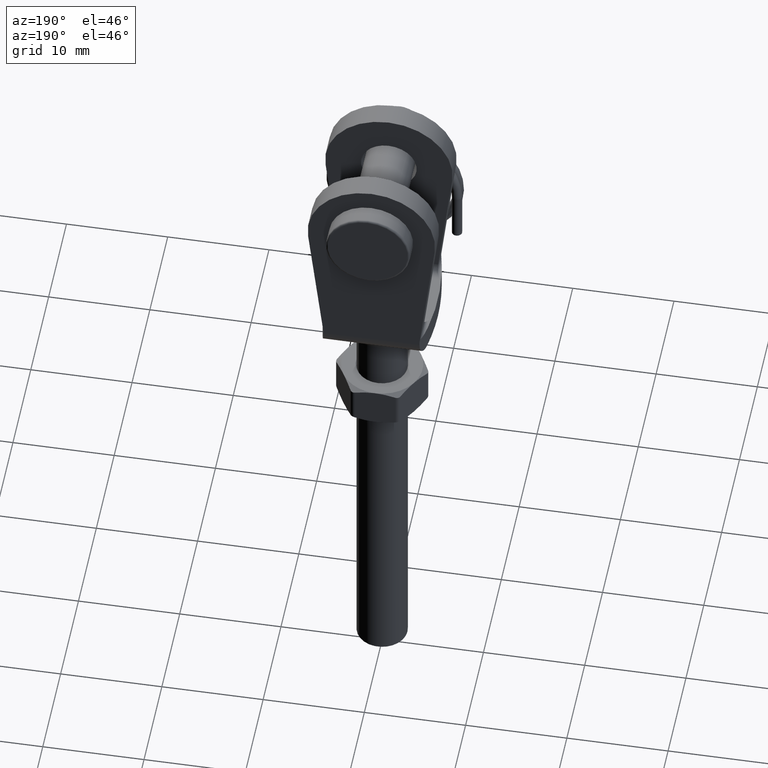
[diagram: clean part render]
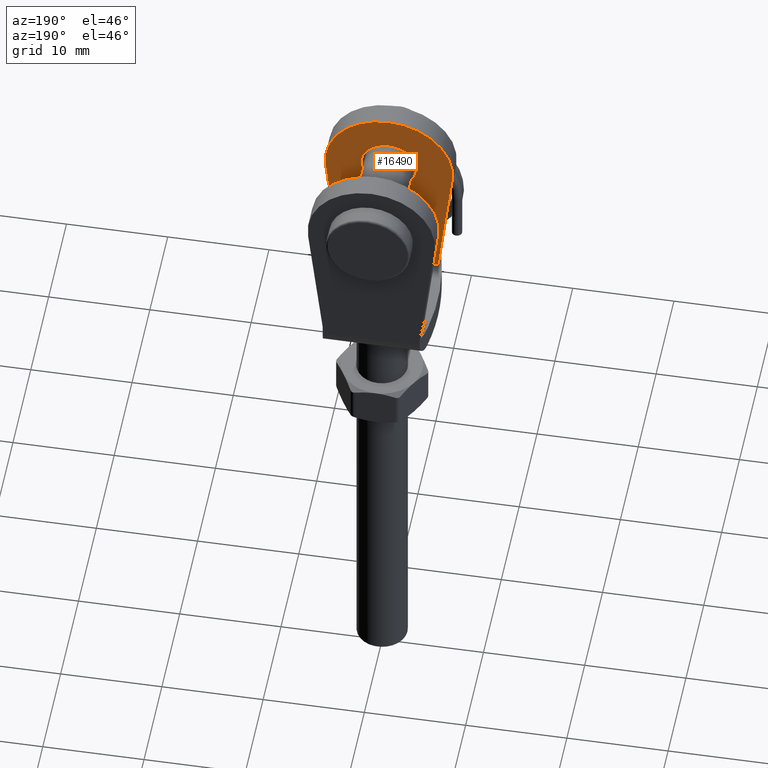
[diagram: same view with one face highlighted and labeled with its STEP entity id]
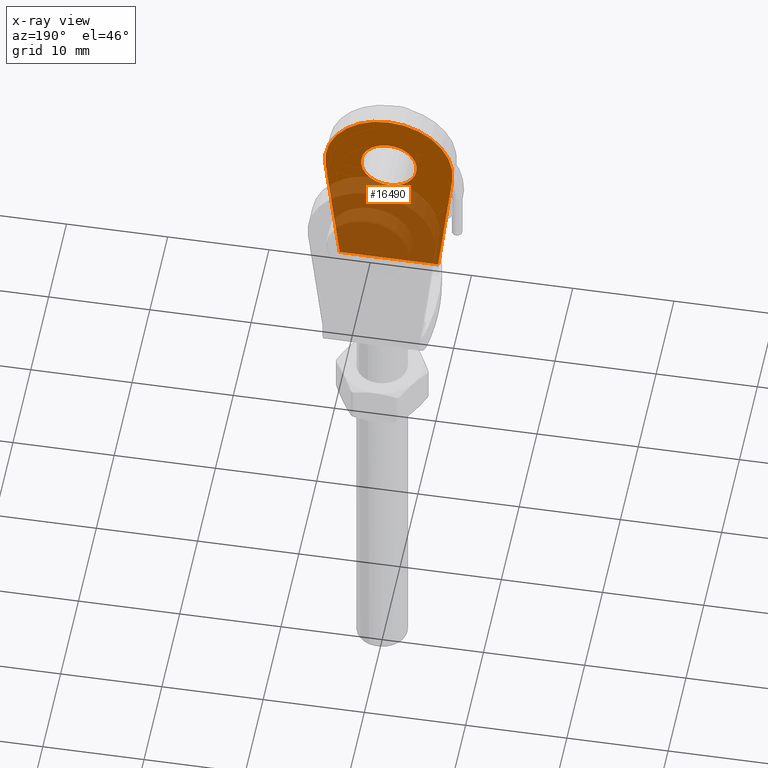
[diagram: x-ray of the same camera — body ghosted, the highlighted face saturated]
A machine part, auxiliary view. The second image highlights one B-rep face of the part: STEP entity #16490.
The next image is the same camera in x-ray: the body ghosted, the highlighted face saturated — about 56% of this face is hidden behind the body in this view.
In plain terms, the highlighted planar face has unit normal (0, 1, 0).
Its self-contained STEP definition (entity closure, byte-faithful):
#122 = DIRECTION ( 'NONE',  ( 0.000000000000000000, 0.000000000000000000, -1.000000000000000000 ) ) ;
#169 = VERTEX_POINT ( 'NONE', #15139 ) ;
#182 = EDGE_LOOP ( 'NONE', ( #13857, #19912, #7109, #10415 ) ) ;
#279 = CARTESIAN_POINT ( 'NONE',  ( -6.249999999999998224, -3.750000000000000000, 12.98654588863615089 ) ) ;
#1660 = DIRECTION ( 'NONE',  ( 0.000000000000000000, 1.000000000000000000, 0.000000000000000000 ) ) ;
#1882 = DIRECTION ( 'NONE',  ( -0.1147412963749135095, 0.000000000000000000, 0.9933954071296102750 ) ) ;
#2418 = CARTESIAN_POINT ( 'NONE',  ( -6.249999999999998224, -3.750000000000000000, 12.98654588863615267 ) ) ;
#2510 = CARTESIAN_POINT ( 'NONE',  ( 4.865504154288830208, -3.750000000000000000, 1.000000000000000222 ) ) ;
#2926 = DIRECTION ( 'NONE',  ( -0.000000000000000000, 1.000000000000000000, -0.000000000000000000 ) ) ;
#3130 = VERTEX_POINT ( 'NONE', #2510 ) ;
#3168 = EDGE_CURVE ( 'NONE', #11579, #3130, #12748, .T. ) ;
#3251 = LINE ( 'NONE', #279, #18303 ) ;
#3405 = FACE_OUTER_BOUND ( 'NONE', #182, .T. ) ;
#4086 = DIRECTION ( 'NONE',  ( -0.1147412963749134818, 0.000000000000000000, -0.9933954071296102750 ) ) ;
#4107 = LINE ( 'NONE', #5121, #7796 ) ;
#4221 = EDGE_CURVE ( 'NONE', #3130, #169, #4107, .T. ) ;
#4401 = AXIS2_PLACEMENT_3D ( 'NONE', #8855, #7129, #13558 ) ;
#5121 = CARTESIAN_POINT ( 'NONE',  ( -4.287600139574957474E-16, -3.750000000000000000, 1.000000000000000888 ) ) ;
#5690 = ORIENTED_EDGE ( 'NONE', *, *, #6767, .F. ) ;
#6144 = CARTESIAN_POINT ( 'NONE',  ( 4.750000000000000888, -3.750000000000000000, 8.641114077848020547E-16 ) ) ;
#6648 = DIRECTION ( 'NONE',  ( -1.000000000000000000, 0.000000000000000000, 1.224646799147353207E-16 ) ) ;
#6767 = EDGE_CURVE ( 'NONE', #11255, #11255, #15908, .T. ) ;
#7109 = ORIENTED_EDGE ( 'NONE', *, *, #10763, .T. ) ;
#7129 = DIRECTION ( 'NONE',  ( 0.000000000000000000, 1.000000000000000000, 0.000000000000000000 ) ) ;
#7506 = CARTESIAN_POINT ( 'NONE',  ( 6.250000000000000000, -3.750000000000000000, 12.98654588863615267 ) ) ;
#7796 = VECTOR ( 'NONE', #6648, 1000.000000000000000 ) ;
#8029 = VECTOR ( 'NONE', #4086, 1000.000000000000227 ) ;
#8855 = CARTESIAN_POINT ( 'NONE',  ( 0.000000000000000000, -3.750000000000000000, 14.00000000000000000 ) ) ;
#10209 = VERTEX_POINT ( 'NONE', #2418 ) ;
#10415 = ORIENTED_EDGE ( 'NONE', *, *, #12504, .T. ) ;
#10763 = EDGE_CURVE ( 'NONE', #169, #10209, #3251, .T. ) ;
#11074 = FACE_BOUND ( 'NONE', #17779, .T. ) ;
#11255 = VERTEX_POINT ( 'NONE', #20267 ) ;
#11579 = VERTEX_POINT ( 'NONE', #7506 ) ;
#12238 = CARTESIAN_POINT ( 'NONE',  ( 1.127575862101384866E-15, -3.750000000000000000, 13.70844685294129306 ) ) ;
#12376 = DIRECTION ( 'NONE',  ( 0.000000000000000000, 0.000000000000000000, -1.000000000000000000 ) ) ;
#12504 = EDGE_CURVE ( 'NONE', #10209, #11579, #16328, .T. ) ;
#12748 = LINE ( 'NONE', #6144, #8029 ) ;
#13558 = DIRECTION ( 'NONE',  ( 0.000000000000000000, 0.000000000000000000, 1.000000000000000000 ) ) ;
#13721 = AXIS2_PLACEMENT_3D ( 'NONE', #17455, #1660, #122 ) ;
#13857 = ORIENTED_EDGE ( 'NONE', *, *, #3168, .T. ) ;
#14441 = PLANE ( 'NONE',  #13721 ) ;
#15139 = CARTESIAN_POINT ( 'NONE',  ( -4.865504154288828431, -3.750000000000000000, 1.000000000000000888 ) ) ;
#15908 = CIRCLE ( 'NONE', #4401, 2.750000000000000888 ) ;
#16328 = CIRCLE ( 'NONE', #19577, 6.291553147058736251 ) ;
#16490 = ADVANCED_FACE ( 'NONE', ( #11074, #3405 ), #14441, .T. ) ;
#17455 = CARTESIAN_POINT ( 'NONE',  ( 1.127575862101384866E-15, -3.750000000000000000, 13.70844685294129306 ) ) ;
#17779 = EDGE_LOOP ( 'NONE', ( #5690 ) ) ;
#18303 = VECTOR ( 'NONE', #1882, 1000.000000000000114 ) ;
#19577 = AXIS2_PLACEMENT_3D ( 'NONE', #12238, #2926, #12376 ) ;
#19912 = ORIENTED_EDGE ( 'NONE', *, *, #4221, .T. ) ;
#20267 = CARTESIAN_POINT ( 'NONE',  ( 0.000000000000000000, -3.750000000000000000, 16.75000000000000000 ) ) ;